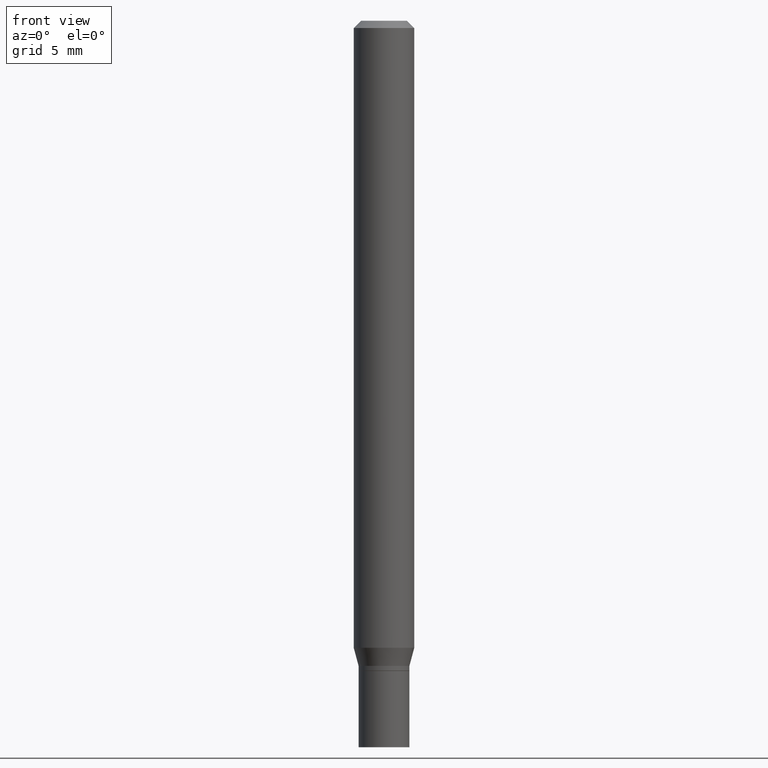
[diagram: clean part render]
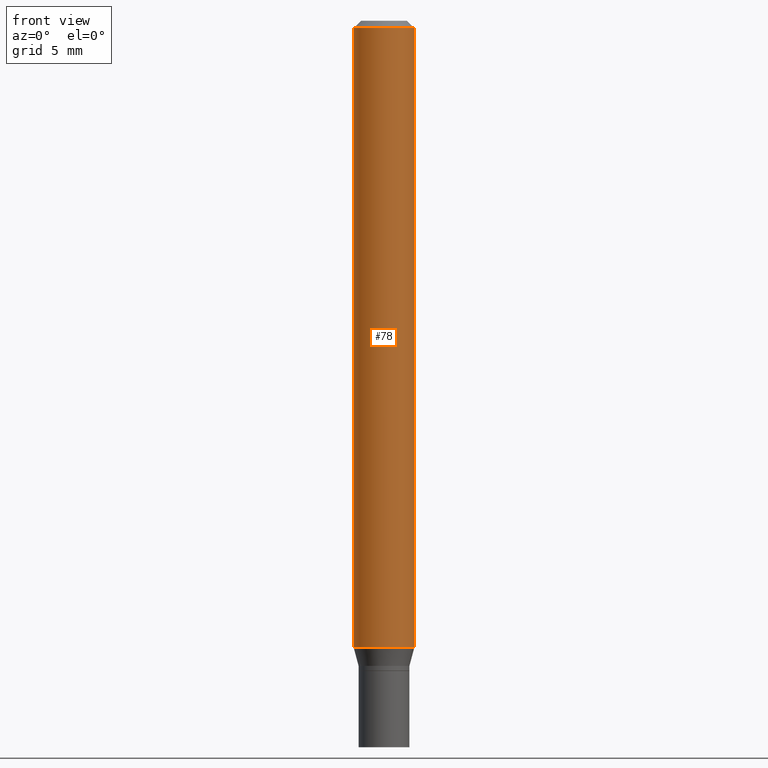
[diagram: same view with one face highlighted and labeled with its STEP entity id]
A machine part, front view. The second image highlights one B-rep face of the part: STEP entity #78.
In plain terms, the highlighted cylindrical surface (edge-blend (fillet) strip) has radius 1.5875 mm, axis along (-0, 0, 1).
Its self-contained STEP definition (entity closure, byte-faithful):
#2 = DIRECTION ( 'NONE',  ( -2.445468806185136877E-29, 3.491481338843145188E-15, 1.000000000000000000 ) ) ;
#8 = CYLINDRICAL_SURFACE ( 'NONE', #14, 0.06250000000000000000 ) ;
#12 = ORIENTED_EDGE ( 'NONE', *, *, #263, .T. ) ;
#14 = AXIS2_PLACEMENT_3D ( 'NONE', #298, #445, #416 ) ;
#45 = EDGE_CURVE ( 'NONE', #215, #151, #194, .T. ) ;
#78 = ADVANCED_FACE ( 'NONE', ( #336 ), #8, .T. ) ;
#88 = DIRECTION ( 'NONE',  ( -2.445468806185136597E-29, 3.491481338843145583E-15, 1.000000000000000000 ) ) ;
#122 = CARTESIAN_POINT ( 'NONE',  ( 3.668203209277705088E-31, -5.237222008264718399E-17, -0.01499999999999999944 ) ) ;
#125 = CARTESIAN_POINT ( 'NONE',  ( 0.06250000000000000000, -4.364351673553916694E-16, 3.047610484872459871E-30 ) ) ;
#129 = EDGE_LOOP ( 'NONE', ( #200, #12, #355, #226 ) ) ;
#150 = EDGE_CURVE ( 'NONE', #287, #151, #260, .T. ) ;
#151 = VERTEX_POINT ( 'NONE', #367 ) ;
#164 = VERTEX_POINT ( 'NONE', #370 ) ;
#175 = CARTESIAN_POINT ( 'NONE',  ( -0.06250000000000000000, -1.842271543109589873E-15, -0.01499999999999999944 ) ) ;
#192 = LINE ( 'NONE', #359, #213 ) ;
#193 = CARTESIAN_POINT ( 'NONE',  ( 0.06250000000000000000, -4.956784453192048385E-15, -1.294679491924311199 ) ) ;
#194 = LINE ( 'NONE', #125, #429 ) ;
#200 = ORIENTED_EDGE ( 'NONE', *, *, #220, .F. ) ;
#213 = VECTOR ( 'NONE', #2, 39.37007874015748143 ) ;
#215 = VERTEX_POINT ( 'NONE', #193 ) ;
#220 = EDGE_CURVE ( 'NONE', #164, #287, #192, .T. ) ;
#226 = ORIENTED_EDGE ( 'NONE', *, *, #150, .F. ) ;
#235 = DIRECTION ( 'NONE',  ( -2.445468806185136597E-29, 3.491481338843145583E-15, 1.000000000000000000 ) ) ;
#260 = CIRCLE ( 'NONE', #343, 0.06250000000000000000 ) ;
#263 = EDGE_CURVE ( 'NONE', #164, #215, #387, .T. ) ;
#264 = DIRECTION ( 'NONE',  ( 1.000000000000000000, -6.982962677686262766E-15, 0.000000000000000000 ) ) ;
#287 = VERTEX_POINT ( 'NONE', #175 ) ;
#298 = CARTESIAN_POINT ( 'NONE',  ( 0.000000000000000000, 0.000000000000000000, 0.000000000000000000 ) ) ;
#306 = AXIS2_PLACEMENT_3D ( 'NONE', #419, #88, #264 ) ;
#336 = FACE_OUTER_BOUND ( 'NONE', #129, .T. ) ;
#343 = AXIS2_PLACEMENT_3D ( 'NONE', #122, #235, #409 ) ;
#355 = ORIENTED_EDGE ( 'NONE', *, *, #45, .T. ) ;
#359 = CARTESIAN_POINT ( 'NONE',  ( -0.06250000000000000000, 4.440892098500626162E-16, -3.074334431409316114E-30 ) ) ;
#366 = DIRECTION ( 'NONE',  ( -2.445468806185136877E-29, 3.491481338843145188E-15, 1.000000000000000000 ) ) ;
#367 = CARTESIAN_POINT ( 'NONE',  ( 0.06250000000000000000, -4.888073874380388472E-16, -0.01499999999999999944 ) ) ;
#370 = CARTESIAN_POINT ( 'NONE',  ( -0.06250000000000000000, -4.076260075986594889E-15, -1.294679491924311199 ) ) ;
#387 = CIRCLE ( 'NONE', #306, 0.06250000000000000000 ) ;
#409 = DIRECTION ( 'NONE',  ( 1.000000000000000000, -6.982962677686266711E-15, 0.000000000000000000 ) ) ;
#416 = DIRECTION ( 'NONE',  ( 1.000000000000000000, -6.982962677686266711E-15, 4.876176775795935793E-29 ) ) ;
#419 = CARTESIAN_POINT ( 'NONE',  ( 3.166098311508524347E-29, -4.520349285836657505E-15, -1.294679491924311199 ) ) ;
#429 = VECTOR ( 'NONE', #366, 39.37007874015748143 ) ;
#445 = DIRECTION ( 'NONE',  ( -2.445468806185136597E-29, 3.491481338843145583E-15, 1.000000000000000000 ) ) ;